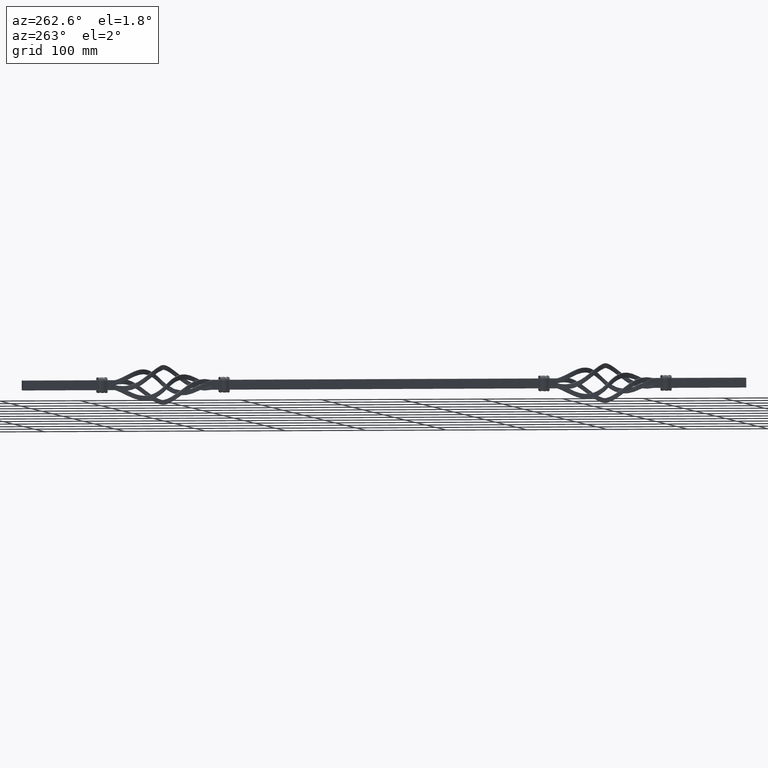
[diagram: clean part render]
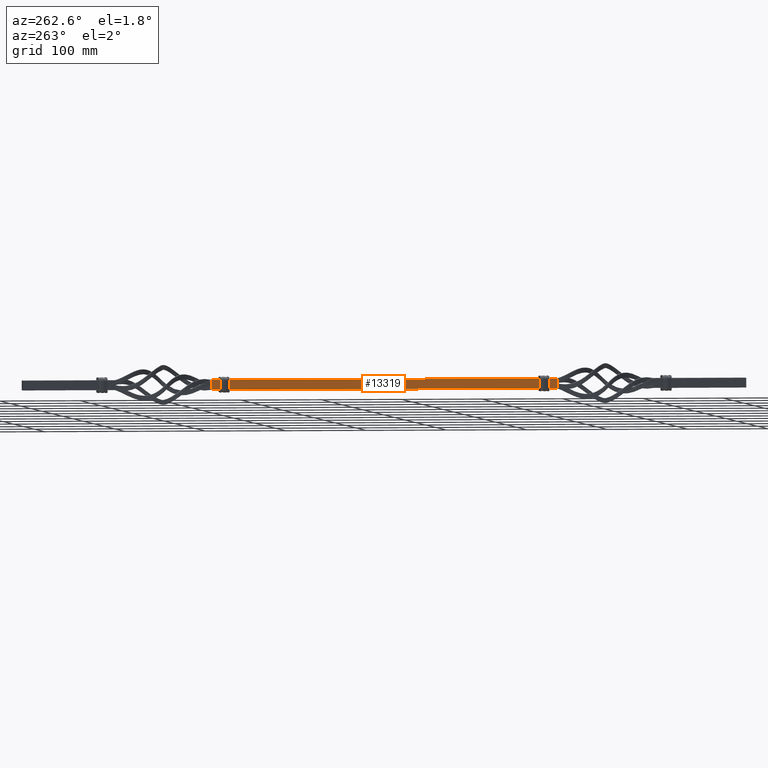
[diagram: same view with one face highlighted and labeled with its STEP entity id]
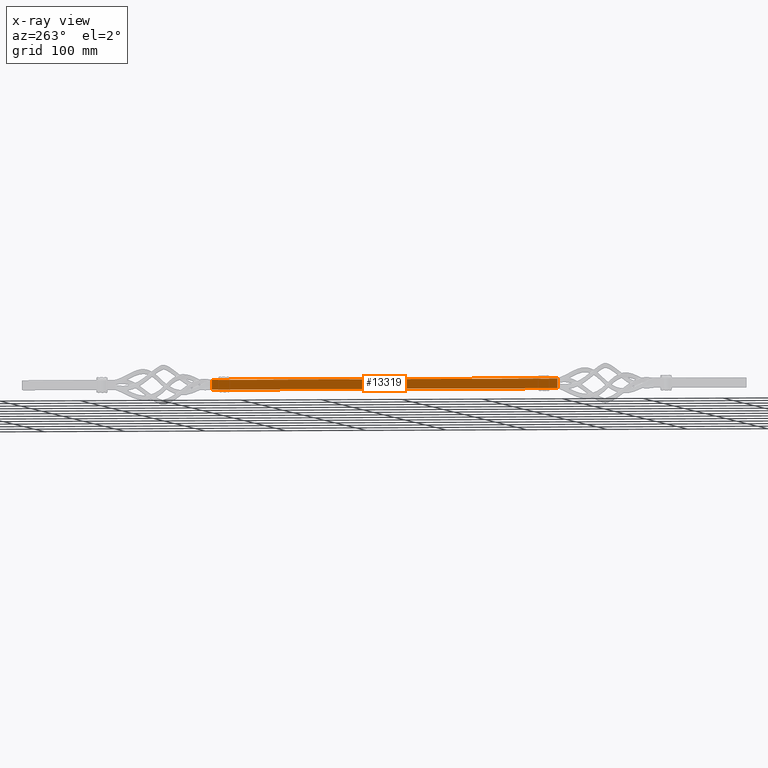
[diagram: x-ray of the same camera — body ghosted, the highlighted face saturated]
A machine part, auxiliary view. The second image highlights one B-rep face of the part: STEP entity #13319.
The next image is the same camera in x-ray: the body ghosted, the highlighted face saturated — about 0% of this face is hidden behind the body in this view.
In plain terms, the highlighted planar face has unit normal (1, 0, 0).
Its self-contained STEP definition (entity closure, byte-faithful):
#43 = VECTOR ( 'NONE', #24353, 1000.000000000000000 ) ;
#220 = CARTESIAN_POINT ( 'NONE',  ( -6.000000000000000000, 16.97056274847694013, 5.999999999999938716 ) ) ;
#398 = VERTEX_POINT ( 'NONE', #24512 ) ;
#900 = CARTESIAN_POINT ( 'NONE',  ( -6.000000000000000000, -204.0000000000000284, 5.900000000000049205 ) ) ;
#941 = DIRECTION ( 'NONE',  ( 1.000000000000000000, 0.000000000000000000, 0.000000000000000000 ) ) ;
#1020 = CARTESIAN_POINT ( 'NONE',  ( -6.000000000005016432, 193.6435504601002151, 5.999999999999938716 ) ) ;
#1173 = CARTESIAN_POINT ( 'NONE',  ( -6.000000000000001776, 204.3564495398905194, 5.999999999999938716 ) ) ;
#1277 = VERTEX_POINT ( 'NONE', #10955 ) ;
#1282 = LINE ( 'NONE', #9322, #3608 ) ;
#1295 = CARTESIAN_POINT ( 'NONE',  ( -6.000000000000000000, -215.0000000000000284, -6.284666409917641302E-14 ) ) ;
#1454 = ORIENTED_EDGE ( 'NONE', *, *, #16146, .T. ) ;
#1478 = CARTESIAN_POINT ( 'NONE',  ( -6.000000000000000000, -215.0000000000000284, 5.999999999999937828 ) ) ;
#1528 = LINE ( 'NONE', #6926, #26154 ) ;
#1600 = ORIENTED_EDGE ( 'NONE', *, *, #5355, .T. ) ;
#1698 = CARTESIAN_POINT ( 'NONE',  ( -6.000000000000000000, 16.97056274847694013, 5.999999999999938716 ) ) ;
#1736 = CARTESIAN_POINT ( 'NONE',  ( -6.000000000000000000, 204.1253499743642692, -5.900000000362775943 ) ) ;
#1789 = CARTESIAN_POINT ( 'NONE',  ( -6.000000000000000000, 193.6435504601002151, -6.000000000004954259 ) ) ;
#1794 = ORIENTED_EDGE ( 'NONE', *, *, #2597, .T. ) ;
#2092 = VECTOR ( 'NONE', #4698, 1000.000000000000000 ) ;
#2289 = VECTOR ( 'NONE', #13179, 1000.000000000000000 ) ;
#2356 = LINE ( 'NONE', #1698, #23994 ) ;
#2362 = ORIENTED_EDGE ( 'NONE', *, *, #2909, .F. ) ;
#2470 = LINE ( 'NONE', #9501, #27080 ) ;
#2543 = CARTESIAN_POINT ( 'NONE',  ( -6.000000000000000000, -194.0000000000000000, -5.900000000000049205 ) ) ;
#2597 = EDGE_CURVE ( 'NONE', #9372, #15103, #2470, .T. ) ;
#2613 = CARTESIAN_POINT ( 'NONE',  ( -6.000000000000000000, -204.0000000000000284, -5.900000000000048317 ) ) ;
#2909 = EDGE_CURVE ( 'NONE', #3023, #17228, #20734, .T. ) ;
#2913 = CARTESIAN_POINT ( 'NONE',  ( -6.000000000000000000, -204.3564495404118020, 5.999999999999938716 ) ) ;
#3023 = VERTEX_POINT ( 'NONE', #20065 ) ;
#3183 = CARTESIAN_POINT ( 'NONE',  ( -6.000000000000000000, 204.2472308568455901, 5.941072655866767249 ) ) ;
#3453 = ORIENTED_EDGE ( 'NONE', *, *, #18072, .T. ) ;
#3516 = VERTEX_POINT ( 'NONE', #14372 ) ;
#3595 = DIRECTION ( 'NONE',  ( 0.000000000000000000, 0.000000000000000000, -1.000000000000000000 ) ) ;
#3608 = VECTOR ( 'NONE', #9827, 1000.000000000000000 ) ;
#3779 = B_SPLINE_CURVE_WITH_KNOTS ( 'NONE', 3,
 ( #2613, #23797, #28487, #11812 ),
 .UNSPECIFIED., .F., .F.,
 ( 4, 4 ),
 ( 0.001680737425676046134, 0.002051352701520438738 ),
 .UNSPECIFIED. ) ;
#4698 = DIRECTION ( 'NONE',  ( -0.000000000000000000, -1.000000000000000000, -0.000000000000000000 ) ) ;
#4794 = CARTESIAN_POINT ( 'NONE',  ( -6.000000000000001776, 204.3564495398905194, 5.999999999999938716 ) ) ;
#5079 = EDGE_CURVE ( 'NONE', #8742, #27269, #2356, .T. ) ;
#5119 = B_SPLINE_CURVE_WITH_KNOTS ( 'NONE', 3,
 ( #26686, #29013, #12437, #29416 ),
 .UNSPECIFIED., .F., .F.,
 ( 4, 4 ),
 ( 0.001310261336106789600, 0.001680737425676045484 ),
 .UNSPECIFIED. ) ;
#5355 = EDGE_CURVE ( 'NONE', #1277, #16997, #13919, .T. ) ;
#5873 = ORIENTED_EDGE ( 'NONE', *, *, #13854, .T. ) ;
#6049 = EDGE_CURVE ( 'NONE', #17228, #9043, #6453, .T. ) ;
#6453 = LINE ( 'NONE', #29059, #43 ) ;
#6490 = EDGE_CURVE ( 'NONE', #23690, #8374, #1528, .T. ) ;
#6672 = CARTESIAN_POINT ( 'NONE',  ( -6.000000000000000000, 204.3564495398905194, -5.999999999999946709 ) ) ;
#6852 = VECTOR ( 'NONE', #19796, 1000.000000000000000 ) ;
#6926 = CARTESIAN_POINT ( 'NONE',  ( -6.000000000000000000, -205.0000000000000284, -5.900000000000049205 ) ) ;
#6999 = EDGE_LOOP ( 'NONE', ( #5873, #16175, #17397, #1454, #9327, #19014, #1600, #17248, #29443, #12055, #9920, #17986, #23052, #13341, #18052, #1794, #16281, #25093, #24835, #2362, #3453, #13564 ) ) ;
#7575 = VERTEX_POINT ( 'NONE', #24405 ) ;
#7785 = CARTESIAN_POINT ( 'NONE',  ( -6.000000000272047274, 215.0000000000000284, 2.094888803305887902E-14 ) ) ;
#8078 = CARTESIAN_POINT ( 'NONE',  ( -6.000000000000000000, 204.0000000000000284, -5.900000000362754626 ) ) ;
#8086 = CARTESIAN_POINT ( 'NONE',  ( -6.000000000000000000, 204.0000000000000284, 5.900000000362748409 ) ) ;
#8104 = FACE_OUTER_BOUND ( 'NONE', #6999, .T. ) ;
#8374 = VERTEX_POINT ( 'NONE', #22190 ) ;
#8742 = VERTEX_POINT ( 'NONE', #24297 ) ;
#8763 = EDGE_CURVE ( 'NONE', #8742, #398, #15245, .T. ) ;
#8861 = VECTOR ( 'NONE', #29078, 1000.000000000000000 ) ;
#9043 = VERTEX_POINT ( 'NONE', #15880 ) ;
#9322 = CARTESIAN_POINT ( 'NONE',  ( -5.999999999999938716, -215.0000000000000284, 2.181624977104698911E-14 ) ) ;
#9327 = ORIENTED_EDGE ( 'NONE', *, *, #6490, .T. ) ;
#9343 = CARTESIAN_POINT ( 'NONE',  ( -6.000000000000000000, 193.6435504601002151, -6.000000000004954259 ) ) ;
#9372 = VERTEX_POINT ( 'NONE', #10154 ) ;
#9501 = CARTESIAN_POINT ( 'NONE',  ( -6.000000000000000000, 205.0000000000000284, 5.900000000362749297 ) ) ;
#9505 = DIRECTION ( 'NONE',  ( 0.000000000000000000, -1.000000000000000000, 0.000000000000000000 ) ) ;
#9583 = CARTESIAN_POINT ( 'NONE',  ( -5.999999999999938716, -215.0000000000000284, 2.181624977104698911E-14 ) ) ;
#9749 = LINE ( 'NONE', #13487, #2289 ) ;
#9827 = DIRECTION ( 'NONE',  ( 3.491481338843133750E-15, -0.000000000000000000, 1.000000000000000000 ) ) ;
#9920 = ORIENTED_EDGE ( 'NONE', *, *, #8763, .T. ) ;
#9988 = VECTOR ( 'NONE', #22088, 1000.000000000000000 ) ;
#10023 = DIRECTION ( 'NONE',  ( 0.000000000000000000, 1.000000000000000000, -0.000000000000000000 ) ) ;
#10127 = CARTESIAN_POINT ( 'NONE',  ( -6.000000000000000000, -204.1260421705836450, 5.900000000000049205 ) ) ;
#10154 = CARTESIAN_POINT ( 'NONE',  ( -6.000000000000000000, 194.0000000000000000, 5.900000000362749297 ) ) ;
#10349 = LINE ( 'NONE', #23982, #8861 ) ;
#10955 = CARTESIAN_POINT ( 'NONE',  ( -6.000000000000000000, -204.3564495404118020, -5.999999999999940492 ) ) ;
#11073 = CARTESIAN_POINT ( 'NONE',  ( -6.000000000000000000, 194.0000000000000000, 5.900000000362749297 ) ) ;
#11206 = CARTESIAN_POINT ( 'NONE',  ( -6.000000000000000000, 193.7527691431476455, -5.941072655869020558 ) ) ;
#11475 = VECTOR ( 'NONE', #19620, 1000.000000000000000 ) ;
#11690 = EDGE_CURVE ( 'NONE', #29030, #26600, #13484, .T. ) ;
#11699 = B_SPLINE_CURVE_WITH_KNOTS ( 'NONE', 3,
 ( #6672, #13746, #1736, #28122 ),
 .UNSPECIFIED., .F., .F.,
 ( 4, 4 ),
 ( 0.001360810894719287865, 0.001730514864299336581 ),
 .UNSPECIFIED. ) ;
#11812 = CARTESIAN_POINT ( 'NONE',  ( -6.000000000000000000, -204.3564495404118020, -5.999999999999940492 ) ) ;
#12055 = ORIENTED_EDGE ( 'NONE', *, *, #5079, .F. ) ;
#12167 = EDGE_CURVE ( 'NONE', #13451, #17712, #12853, .T. ) ;
#12437 = CARTESIAN_POINT ( 'NONE',  ( -6.000000000000000000, -193.8739578294214994, -5.900000000000049205 ) ) ;
#12599 = B_SPLINE_CURVE_WITH_KNOTS ( 'NONE', 3,
 ( #1020, #13664, #17939, #11073 ),
 .UNSPECIFIED., .F., .F.,
 ( 4, 4 ),
 ( 0.001360810894711275178, 0.001730514864299333979 ),
 .UNSPECIFIED. ) ;
#12647 = VERTEX_POINT ( 'NONE', #4794 ) ;
#12766 = PLANE ( 'NONE',  #25006 ) ;
#12853 = B_SPLINE_CURVE_WITH_KNOTS ( 'NONE', 3,
 ( #25458, #30056, #11206, #1789 ),
 .UNSPECIFIED., .F., .F.,
 ( 4, 4 ),
 ( 0.001730514864299335931, 0.002100971034200429903 ),
 .UNSPECIFIED. ) ;
#13100 = DIRECTION ( 'NONE',  ( 3.491481338843133750E-15, -0.000000000000000000, 1.000000000000000000 ) ) ;
#13179 = DIRECTION ( 'NONE',  ( -0.000000000000000000, -1.000000000000000000, -0.000000000000000000 ) ) ;
#13253 = EDGE_CURVE ( 'NONE', #17712, #7575, #15563, .T. ) ;
#13289 = VECTOR ( 'NONE', #14472, 1000.000000000000000 ) ;
#13319 = ADVANCED_FACE ( 'NONE', ( #8104 ), #12766, .F. ) ;
#13339 = LINE ( 'NONE', #29586, #9988 ) ;
#13341 = ORIENTED_EDGE ( 'NONE', *, *, #26560, .F. ) ;
#13451 = VERTEX_POINT ( 'NONE', #15998 ) ;
#13484 = B_SPLINE_CURVE_WITH_KNOTS ( 'NONE', 3,
 ( #18518, #30312, #28308, #20804 ),
 .UNSPECIFIED., .F., .F.,
 ( 4, 4 ),
 ( 0.001680737425675980648, 0.002051352701505401721 ),
 .UNSPECIFIED. ) ;
#13487 = CARTESIAN_POINT ( 'NONE',  ( -6.000000000000000000, 16.97056274847694013, -5.999999999999940492 ) ) ;
#13564 = ORIENTED_EDGE ( 'NONE', *, *, #16749, .T. ) ;
#13664 = CARTESIAN_POINT ( 'NONE',  ( -6.000000000000000000, 193.7526530278732366, 5.941135304168565945 ) ) ;
#13746 = CARTESIAN_POINT ( 'NONE',  ( -6.000000000000000000, 204.2473469721215906, -5.941135304166827780 ) ) ;
#13788 = VERTEX_POINT ( 'NONE', #9583 ) ;
#13854 = EDGE_CURVE ( 'NONE', #27095, #13451, #16291, .T. ) ;
#13919 = LINE ( 'NONE', #26887, #6852 ) ;
#14151 = LINE ( 'NONE', #1295, #20475 ) ;
#14372 = CARTESIAN_POINT ( 'NONE',  ( -6.000000000005016432, 193.6435504601002151, 5.999999999999938716 ) ) ;
#14472 = DIRECTION ( 'NONE',  ( -0.000000000000000000, -1.000000000000000000, -0.000000000000000000 ) ) ;
#15103 = VERTEX_POINT ( 'NONE', #17592 ) ;
#15245 = B_SPLINE_CURVE_WITH_KNOTS ( 'NONE', 3,
 ( #2913, #19579, #10127, #900 ),
 .UNSPECIFIED., .F., .F.,
 ( 4, 4 ),
 ( 0.001310261336091701409, 0.001680737425675981733 ),
 .UNSPECIFIED. ) ;
#15387 = CARTESIAN_POINT ( 'NONE',  ( -6.000000000000000000, 204.1256050116303129, 5.900000000362776831 ) ) ;
#15563 = LINE ( 'NONE', #22249, #11475 ) ;
#15880 = CARTESIAN_POINT ( 'NONE',  ( -6.000000000272025957, 215.0000000000000284, 6.000000000000022204 ) ) ;
#15998 = CARTESIAN_POINT ( 'NONE',  ( -6.000000000000000000, 194.0000000000000000, -5.900000000362748409 ) ) ;
#16146 = EDGE_CURVE ( 'NONE', #7575, #23690, #5119, .T. ) ;
#16175 = ORIENTED_EDGE ( 'NONE', *, *, #12167, .T. ) ;
#16281 = ORIENTED_EDGE ( 'NONE', *, *, #28863, .T. ) ;
#16291 = LINE ( 'NONE', #16473, #2092 ) ;
#16473 = CARTESIAN_POINT ( 'NONE',  ( -6.000000000000000000, 205.0000000000000284, -5.900000000362748409 ) ) ;
#16556 = VERTEX_POINT ( 'NONE', #19661 ) ;
#16749 = EDGE_CURVE ( 'NONE', #16556, #27095, #11699, .T. ) ;
#16997 = VERTEX_POINT ( 'NONE', #21343 ) ;
#17228 = VERTEX_POINT ( 'NONE', #20630 ) ;
#17248 = ORIENTED_EDGE ( 'NONE', *, *, #30750, .T. ) ;
#17397 = ORIENTED_EDGE ( 'NONE', *, *, #13253, .T. ) ;
#17551 = CARTESIAN_POINT ( 'NONE',  ( -6.000000000000000000, 16.97056274847694013, -5.999999999999940492 ) ) ;
#17592 = CARTESIAN_POINT ( 'NONE',  ( -6.000000000000000000, 204.0000000000000284, 5.900000000362748409 ) ) ;
#17712 = VERTEX_POINT ( 'NONE', #9343 ) ;
#17939 = CARTESIAN_POINT ( 'NONE',  ( -6.000000000000000000, 193.8746500256330307, 5.900000000362779495 ) ) ;
#17986 = ORIENTED_EDGE ( 'NONE', *, *, #26429, .T. ) ;
#18052 = ORIENTED_EDGE ( 'NONE', *, *, #30964, .T. ) ;
#18072 = EDGE_CURVE ( 'NONE', #3023, #16556, #9749, .T. ) ;
#18198 = EDGE_CURVE ( 'NONE', #8374, #1277, #3779, .T. ) ;
#18288 = DIRECTION ( 'NONE',  ( -0.000000000000000000, -1.000000000000000000, -0.000000000000000000 ) ) ;
#18518 = CARTESIAN_POINT ( 'NONE',  ( -6.000000000000000000, -194.0000000000000000, 5.900000000000050093 ) ) ;
#19014 = ORIENTED_EDGE ( 'NONE', *, *, #18198, .T. ) ;
#19579 = CARTESIAN_POINT ( 'NONE',  ( -6.000000000000000000, -204.2472008152286946, 5.941056446961885840 ) ) ;
#19620 = DIRECTION ( 'NONE',  ( -0.000000000000000000, -1.000000000000000000, -0.000000000000000000 ) ) ;
#19661 = CARTESIAN_POINT ( 'NONE',  ( -6.000000000000000000, 204.3564495398905194, -5.999999999999946709 ) ) ;
#19796 = DIRECTION ( 'NONE',  ( -0.000000000000000000, -1.000000000000000000, -0.000000000000000000 ) ) ;
#20065 = CARTESIAN_POINT ( 'NONE',  ( -6.000000000272066814, 215.0000000000000284, -5.999999999999980460 ) ) ;
#20475 = VECTOR ( 'NONE', #25294, 1000.000000000000000 ) ;
#20630 = CARTESIAN_POINT ( 'NONE',  ( -6.000000000272047274, 215.0000000000000284, 2.094888803305887902E-14 ) ) ;
#20734 = LINE ( 'NONE', #7785, #24460 ) ;
#20804 = CARTESIAN_POINT ( 'NONE',  ( -6.000000000000000888, -193.6435504596053363, 5.999999999999938716 ) ) ;
#21111 = CARTESIAN_POINT ( 'NONE',  ( -6.000000000000000000, -194.0000000000000000, 5.900000000000050093 ) ) ;
#21343 = CARTESIAN_POINT ( 'NONE',  ( -5.999999999999958256, -215.0000000000000284, -5.999999999999979572 ) ) ;
#22088 = DIRECTION ( 'NONE',  ( -0.000000000000000000, -1.000000000000000000, -0.000000000000000000 ) ) ;
#22190 = CARTESIAN_POINT ( 'NONE',  ( -6.000000000000000000, -204.0000000000000284, -5.900000000000048317 ) ) ;
#22249 = CARTESIAN_POINT ( 'NONE',  ( -6.000000000000000000, 16.97056274847694013, -5.999999999999940492 ) ) ;
#23052 = ORIENTED_EDGE ( 'NONE', *, *, #11690, .T. ) ;
#23690 = VERTEX_POINT ( 'NONE', #2543 ) ;
#23797 = CARTESIAN_POINT ( 'NONE',  ( -6.000000000000000000, -204.1260895240804700, -5.900000000000047429 ) ) ;
#23982 = CARTESIAN_POINT ( 'NONE',  ( -6.000000000000000000, -205.0000000000000284, 5.900000000000050093 ) ) ;
#23994 = VECTOR ( 'NONE', #18288, 1000.000000000000000 ) ;
#24297 = CARTESIAN_POINT ( 'NONE',  ( -6.000000000000000000, -204.3564495404118020, 5.999999999999938716 ) ) ;
#24353 = DIRECTION ( 'NONE',  ( 0.000000000000000000, 0.000000000000000000, 1.000000000000000000 ) ) ;
#24405 = CARTESIAN_POINT ( 'NONE',  ( -6.000000000000000000, -193.6435504596053363, -5.999999999999939604 ) ) ;
#24460 = VECTOR ( 'NONE', #13100, 1000.000000000000000 ) ;
#24512 = CARTESIAN_POINT ( 'NONE',  ( -6.000000000000000000, -204.0000000000000284, 5.900000000000049205 ) ) ;
#24584 = CARTESIAN_POINT ( 'NONE',  ( -6.000000000000000888, -193.6435504596053363, 5.999999999999938716 ) ) ;
#24835 = ORIENTED_EDGE ( 'NONE', *, *, #6049, .F. ) ;
#24938 = EDGE_CURVE ( 'NONE', #13788, #27269, #14151, .T. ) ;
#25006 = AXIS2_PLACEMENT_3D ( 'NONE', #17551, #941, #3595 ) ;
#25093 = ORIENTED_EDGE ( 'NONE', *, *, #30483, .F. ) ;
#25294 = DIRECTION ( 'NONE',  ( 0.000000000000000000, 0.000000000000000000, 1.000000000000000000 ) ) ;
#25458 = CARTESIAN_POINT ( 'NONE',  ( -6.000000000000000000, 194.0000000000000000, -5.900000000362748409 ) ) ;
#26154 = VECTOR ( 'NONE', #9505, 1000.000000000000000 ) ;
#26429 = EDGE_CURVE ( 'NONE', #398, #29030, #10349, .T. ) ;
#26560 = EDGE_CURVE ( 'NONE', #3516, #26600, #13339, .T. ) ;
#26600 = VERTEX_POINT ( 'NONE', #24584 ) ;
#26686 = CARTESIAN_POINT ( 'NONE',  ( -6.000000000000000000, -193.6435504596053363, -5.999999999999939604 ) ) ;
#26887 = CARTESIAN_POINT ( 'NONE',  ( -6.000000000000000000, 16.97056274847694013, -5.999999999999940492 ) ) ;
#27080 = VECTOR ( 'NONE', #10023, 1000.000000000000000 ) ;
#27095 = VERTEX_POINT ( 'NONE', #8078 ) ;
#27269 = VERTEX_POINT ( 'NONE', #1478 ) ;
#28122 = CARTESIAN_POINT ( 'NONE',  ( -6.000000000000000000, 204.0000000000000284, -5.900000000362754626 ) ) ;
#28308 = CARTESIAN_POINT ( 'NONE',  ( -6.000000000000000000, -193.7526343189947227, 5.941145397884169732 ) ) ;
#28487 = CARTESIAN_POINT ( 'NONE',  ( -6.000000000000000000, -204.2473656810149123, -5.941145397887398261 ) ) ;
#28863 = EDGE_CURVE ( 'NONE', #15103, #12647, #29363, .T. ) ;
#29013 = CARTESIAN_POINT ( 'NONE',  ( -6.000000000000000000, -193.7527991847809687, -5.941056446958654647 ) ) ;
#29030 = VERTEX_POINT ( 'NONE', #21111 ) ;
#29059 = CARTESIAN_POINT ( 'NONE',  ( -6.000000000272025957, 215.0000000000000284, 2.094888803305880329E-14 ) ) ;
#29078 = DIRECTION ( 'NONE',  ( 0.000000000000000000, 1.000000000000000000, 0.000000000000000000 ) ) ;
#29363 = B_SPLINE_CURVE_WITH_KNOTS ( 'NONE', 3,
 ( #8086, #15387, #3183, #1173 ),
 .UNSPECIFIED., .F., .F.,
 ( 4, 4 ),
 ( 0.001730514864299335714, 0.002100971034189930923 ),
 .UNSPECIFIED. ) ;
#29416 = CARTESIAN_POINT ( 'NONE',  ( -6.000000000000000000, -194.0000000000000000, -5.900000000000049205 ) ) ;
#29443 = ORIENTED_EDGE ( 'NONE', *, *, #24938, .T. ) ;
#29586 = CARTESIAN_POINT ( 'NONE',  ( -6.000000000000000000, 16.97056274847694013, 5.999999999999938716 ) ) ;
#30056 = CARTESIAN_POINT ( 'NONE',  ( -6.000000000000000000, 193.8743949883661344, -5.900000000362778607 ) ) ;
#30312 = CARTESIAN_POINT ( 'NONE',  ( -6.000000000000000000, -193.8739104759246459, 5.900000000000050093 ) ) ;
#30483 = EDGE_CURVE ( 'NONE', #9043, #12647, #30822, .T. ) ;
#30750 = EDGE_CURVE ( 'NONE', #16997, #13788, #1282, .T. ) ;
#30822 = LINE ( 'NONE', #220, #13289 ) ;
#30964 = EDGE_CURVE ( 'NONE', #3516, #9372, #12599, .T. ) ;